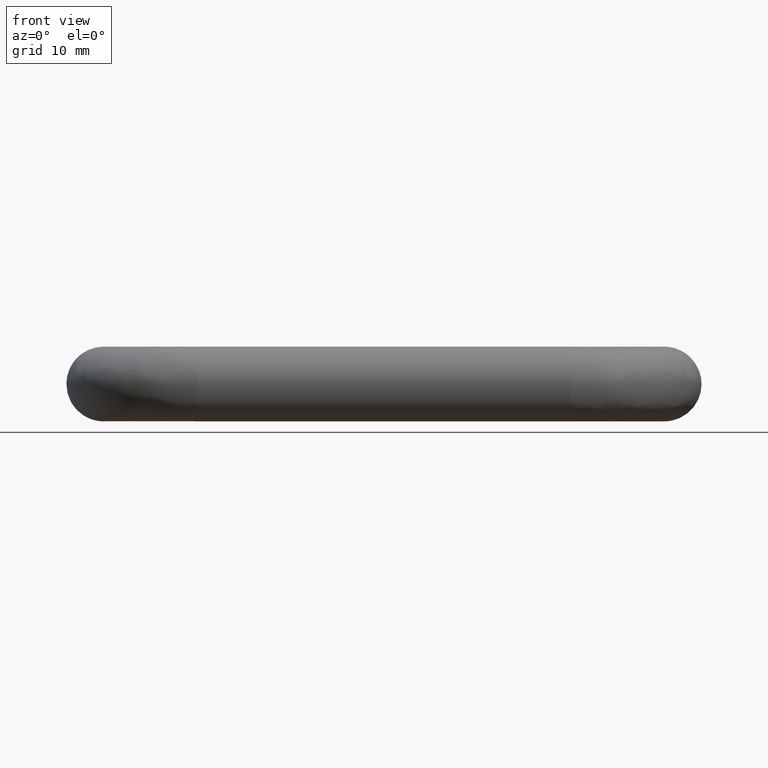
[diagram: clean part render]
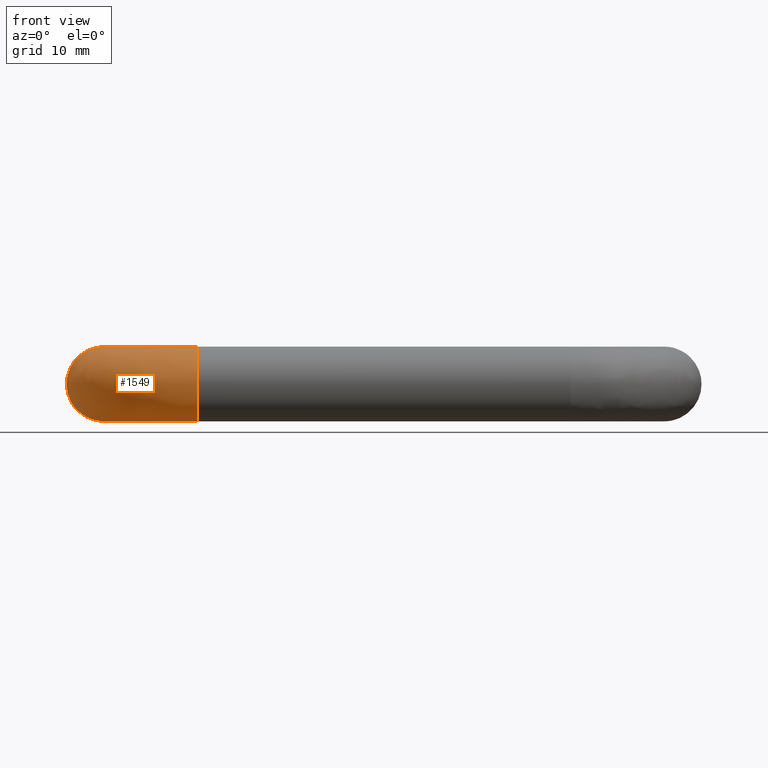
[diagram: same view with one face highlighted and labeled with its STEP entity id]
A machine part, front view. The second image highlights one B-rep face of the part: STEP entity #1549.
In plain terms, the highlighted face is a freeform B-spline surface patch.
Its self-contained STEP definition (entity closure, byte-faithful):
#981=CARTESIAN_POINT('',(9.999999999977183,-18.050264159744199,3.999684176812615));
#982=VERTEX_POINT('',#981);
#998=CARTESIAN_POINT('',(10.0,-22.0,0.0));
#999=VERTEX_POINT('',#998);
#1000=CARTESIAN_POINT('',(9.999999999977183,-18.050264159744192,3.999684176812615));
#1001=CARTESIAN_POINT('',(10.0,-22.0,3.950047719212881));
#1002=CARTESIAN_POINT('',(10.0,-22.0,0.0));
#1010=(BOUNDED_CURVE()B_SPLINE_CURVE(2,(#1000,#1001,#1002),.UNSPECIFIED.,.F.,.U.)B_SPLINE_CURVE_WITH_KNOTS((3,3),(0.752215704096809,1.0),.UNSPECIFIED.)CURVE()GEOMETRIC_REPRESENTATION_ITEM()RATIONAL_B_SPLINE_CURVE((0.994854295601348,0.709702640005957,1.0))REPRESENTATION_ITEM(''));
#1011=EDGE_CURVE('',#982,#999,#1010,.T.);
#1013=CARTESIAN_POINT('',(10.0,-20.901498075328391,-2.753417679696430));
#1014=VERTEX_POINT('',#1013);
#1015=CARTESIAN_POINT('',(10.0,-22.0,0.0));
#1016=CARTESIAN_POINT('',(10.000000000000002,-22.0,-1.595837188198000));
#1017=CARTESIAN_POINT('',(10.0,-20.901498075328391,-2.753417679696430));
#1025=(BOUNDED_CURVE()B_SPLINE_CURVE(2,(#1015,#1016,#1017),.UNSPECIFIED.,.F.,.U.)B_SPLINE_CURVE_WITH_KNOTS((3,3),(0.0,0.121049461843310),.UNSPECIFIED.)CURVE()GEOMETRIC_REPRESENTATION_ITEM()RATIONAL_B_SPLINE_CURVE((1.0,0.858181733940307,0.853699666169231))REPRESENTATION_ITEM(''));
#1026=EDGE_CURVE('',#999,#1014,#1025,.T.);
#1132=CARTESIAN_POINT('',(9.999999999754682,-17.721066993419509,-3.990262695342246));
#1133=VERTEX_POINT('',#1132);
#1134=CARTESIAN_POINT('',(10.0,-20.901498075328398,-2.753417679696430));
#1135=CARTESIAN_POINT('',(10.0,-19.718536641396604,-4.000000000000001));
#1136=CARTESIAN_POINT('',(10.0,-18.0,-4.0));
#1137=CARTESIAN_POINT('',(10.0,-17.860363536221410,-4.000000000000000));
#1138=CARTESIAN_POINT('',(9.999999999754682,-17.721066993419505,-3.990262695342246));
#1146=(BOUNDED_CURVE()B_SPLINE_CURVE(2,(#1134,#1135,#1136,#1137,#1138),.UNSPECIFIED.,.F.,.U.)B_SPLINE_CURVE_WITH_KNOTS((3,2,3),(0.121049461843310,0.250000000000000,0.262166313488892),.UNSPECIFIED.)CURVE()GEOMETRIC_REPRESENTATION_ITEM()RATIONAL_B_SPLINE_CURVE((0.853699666169232,0.848925047246240,1.0,0.985746277124580,0.972879876336249))REPRESENTATION_ITEM(''));
#1147=EDGE_CURVE('',#1014,#1133,#1146,.T.);
#1186=CARTESIAN_POINT('',(-0.050264161491411,-8.000000000482695,3.999684176790658));
#1187=VERTEX_POINT('',#1186);
#1242=CARTESIAN_POINT('',(-2.803636855499414,-7.999996549036103,-2.853001994825821));
#1243=VERTEX_POINT('',#1242);
#1249=CARTESIAN_POINT('',(-3.999999999999999,-8.0,0.0));
#1250=VERTEX_POINT('',#1249);
#1251=CARTESIAN_POINT('',(-3.999999999999999,-8.0,0.0));
#1252=CARTESIAN_POINT('',(-4.000000000000053,-7.999998600445676,-1.677339539548950));
#1253=CARTESIAN_POINT('',(-2.803636855499414,-7.999996549036104,-2.853001994825821));
#1261=(BOUNDED_CURVE()B_SPLINE_CURVE(2,(#1251,#1252,#1253),.UNSPECIFIED.,.F.,.U.)B_SPLINE_CURVE_WITH_KNOTS((3,3),(0.0,0.126316778926350),.UNSPECIFIED.)CURVE()GEOMETRIC_REPRESENTATION_ITEM()RATIONAL_B_SPLINE_CURVE((1.0,0.852010688120457,0.853569641778120))REPRESENTATION_ITEM(''));
#1262=EDGE_CURVE('',#1250,#1243,#1261,.T.);
#1264=CARTESIAN_POINT('',(-0.050264161491411,-8.000000000482695,3.999684176790658));
#1265=CARTESIAN_POINT('',(-4.0,-8.0,3.950047715761540));
#1266=CARTESIAN_POINT('',(-3.999999999999999,-8.0,0.0));
#1274=(BOUNDED_CURVE()B_SPLINE_CURVE(2,(#1264,#1265,#1266),.UNSPECIFIED.,.F.,.U.)B_SPLINE_CURVE_WITH_KNOTS((3,3),(0.752215704250460,1.0),.UNSPECIFIED.)CURVE()GEOMETRIC_REPRESENTATION_ITEM()RATIONAL_B_SPLINE_CURVE((0.994854295247703,0.709702640185971,1.0))REPRESENTATION_ITEM(''));
#1275=EDGE_CURVE('',#1187,#1250,#1274,.T.);
#1317=CARTESIAN_POINT('',(0.278927085149124,-7.999992841993045,-3.990263109262084));
#1318=VERTEX_POINT('',#1317);
#1332=CARTESIAN_POINT('',(-2.803636855499414,-7.999996549036104,-2.853001994825821));
#1333=CARTESIAN_POINT('',(-1.636442875590120,-7.999994547647625,-3.999999999996933));
#1334=CARTESIAN_POINT('',(-2.710222E-013,-7.999993083438938,-3.999999999996109));
#1335=CARTESIAN_POINT('',(0.139633492081325,-7.999992958501750,-3.999999999996039));
#1336=CARTESIAN_POINT('',(0.278927085149124,-7.999992841993045,-3.990263109262085));
#1344=(BOUNDED_CURVE()B_SPLINE_CURVE(2,(#1332,#1333,#1334,#1335,#1336),.UNSPECIFIED.,.F.,.U.)B_SPLINE_CURVE_WITH_KNOTS((3,2,3),(0.126316778926350,0.250000000000000,0.262166058259925),.UNSPECIFIED.)CURVE()GEOMETRIC_REPRESENTATION_ITEM()RATIONAL_B_SPLINE_CURVE((0.853569641778120,0.855096093066091,1.0,0.985746576143914,0.972880416168121))REPRESENTATION_ITEM(''));
#1345=EDGE_CURVE('',#1243,#1318,#1344,.T.);
#1480=CARTESIAN_POINT('',(0.362759058552336,-7.328220084217699,-3.986037690130090));
#1481=CARTESIAN_POINT('',(-0.409692905576315,-18.409685187760218,-3.986037690130087));
#1482=CARTESIAN_POINT('',(10.671772770664438,-17.637241439507328,-3.986037690130088));
#1483=CARTESIAN_POINT('',(0.332525016635582,-7.326112570017734,-3.988156279814388));
#1484=CARTESIAN_POINT('',(-0.442350290979450,-18.442342548950961,-3.988156279814386));
#1485=CARTESIAN_POINT('',(10.673880262448675,-17.667475482986603,-3.988156279814387));
#1486=CARTESIAN_POINT('',(0.188541437608098,-7.316075955059079,-3.998245639552520));
#1487=CARTESIAN_POINT('',(-0.597874558788898,-18.597866701453658,-3.998245639552521));
#1488=CARTESIAN_POINT('',(10.683916770656896,-17.811459069455264,-3.998245639552520));
#1489=CARTESIAN_POINT('',(0.074349399755585,-7.308116009049880,-3.999684176815263));
#1490=CARTESIAN_POINT('',(-0.721219409615885,-18.721211460831963,-3.999684176815263));
#1491=CARTESIAN_POINT('',(10.691876632003321,-17.925651113209302,-3.999684176815263));
#1492=CARTESIAN_POINT('',(-3.915652775873313,-7.029986268203891,-4.049948336348672));
#1493=CARTESIAN_POINT('',(-5.031031480646149,-23.031020336538660,-4.049948336348671));
#1494=CARTESIAN_POINT('',(10.970003414633782,-21.915653495044438,-4.049948336348672));
#1495=CARTESIAN_POINT('',(-3.965795261386791,-7.026491002816214,-0.050264159533408));
#1496=CARTESIAN_POINT('',(-5.085193027388509,-23.085181843125294,-0.050264159533408));
#1497=CARTESIAN_POINT('',(10.973498642845470,-21.965795983149324,-0.050264159533408));
#1498=CARTESIAN_POINT('',(-4.015937746900272,-7.022995737428533,3.949420017281855));
#1499=CARTESIAN_POINT('',(-5.139354574130874,-23.139343349711918,3.949420017281855));
#1500=CARTESIAN_POINT('',(10.976993871057159,-22.015938471254195,3.949420017281855));
#1501=CARTESIAN_POINT('',(0.003379571743219,-7.303168939097503,4.000053475116461));
#1502=CARTESIAN_POINT('',(-0.797877668930852,-18.797869663311985,4.000053475116459));
#1503=CARTESIAN_POINT('',(10.696823649338167,-17.996620944889447,4.000053475116459));
#1504=CARTESIAN_POINT('',(0.032516827215180,-7.305199999973329,4.000420532474561));
#1505=CARTESIAN_POINT('',(-0.766404980490537,-18.766396998205721,4.000420532474562));
#1506=CARTESIAN_POINT('',(10.694792610064908,-17.967483687911653,4.000420532474561));
#1514=(BOUNDED_SURFACE()B_SPLINE_SURFACE(2,2,((#1480,#1483,#1486,#1489,#1492,#1495,#1498,#1501,#1504),(#1481,#1484,#1487,#1490,#1493,#1496,#1499,#1502,#1505),(#1482,#1485,#1488,#1491,#1494,#1497,#1500,#1503,#1506)),.UNSPECIFIED.,.F.,.F.,.U.)B_SPLINE_SURFACE_WITH_KNOTS((3,3),(3,1,2,2,1,3),(0.0,25.512674355220089),(0.0,0.068988752659974,0.334085179762860,6.961502177732383,13.588919175701911,13.657991151437541),.UNSPECIFIED.)GEOMETRIC_REPRESENTATION_ITEM()RATIONAL_B_SPLINE_SURFACE(((0.896248106684243,0.898834768799030,0.911360947984552,0.922164769991582,0.652068962232381,0.922164769991582,0.652068962232381,0.924979750712662,0.927794731433741),(0.588139987186060,0.589837418301060,0.598057404274496,0.605147137228335,0.427903644349782,0.605147137228335,0.427903644349782,0.606994396612067,0.608841655995799),(0.896247803949265,0.898834465190328,0.911360640144753,0.922164458502465,0.652068741976314,0.922164458502465,0.652068741976314,0.924979438272700,0.927794418042934)))REPRESENTATION_ITEM('')SURFACE());
#1515=ORIENTED_EDGE('',*,*,#1147,.F.);
#1516=ORIENTED_EDGE('',*,*,#1026,.F.);
#1517=ORIENTED_EDGE('',*,*,#1011,.F.);
#1518=CARTESIAN_POINT('',(-0.050264161491411,-8.000000000482695,3.999684176790658));
#1519=CARTESIAN_POINT('',(-0.050264158568014,-18.050264159487760,3.999684176815263));
#1520=CARTESIAN_POINT('',(9.999999999977183,-18.050264159744199,3.999684176812615));
#1528=(BOUNDED_CURVE()B_SPLINE_CURVE(2,(#1518,#1519,#1520),.UNSPECIFIED.,.F.,.U.)B_SPLINE_CURVE_WITH_KNOTS((3,3),(-1.744561813214446,-0.255438186689191),.UNSPECIFIED.)CURVE()GEOMETRIC_REPRESENTATION_ITEM()RATIONAL_B_SPLINE_CURVE((0.894678510006817,0.632633241451508,0.894678510040732))REPRESENTATION_ITEM(''));
#1529=EDGE_CURVE('',#1187,#982,#1528,.T.);
#1530=ORIENTED_EDGE('',*,*,#1529,.F.);
#1531=ORIENTED_EDGE('',*,*,#1275,.T.);
#1532=ORIENTED_EDGE('',*,*,#1262,.T.);
#1533=ORIENTED_EDGE('',*,*,#1345,.T.);
#1534=CARTESIAN_POINT('',(0.278927085149124,-7.999992841993045,-3.990263109262084));
#1535=CARTESIAN_POINT('',(0.278922887841558,-17.721066993066049,-3.990262902302166));
#1536=CARTESIAN_POINT('',(9.999999999754682,-17.721066993419505,-3.990262695342245));
#1544=(BOUNDED_CURVE()B_SPLINE_CURVE(2,(#1534,#1535,#1536),.UNSPECIFIED.,.F.,.U.)B_SPLINE_CURVE_WITH_KNOTS((3,3),(-1.744562588658354,-0.255438186737555),.UNSPECIFIED.)CURVE()GEOMETRIC_REPRESENTATION_ITEM()RATIONAL_B_SPLINE_CURVE((0.874553700153646,0.618402529915441,0.874553433394918))REPRESENTATION_ITEM(''));
#1545=EDGE_CURVE('',#1318,#1133,#1544,.T.);
#1546=ORIENTED_EDGE('',*,*,#1545,.T.);
#1547=EDGE_LOOP('',(#1515,#1516,#1517,#1530,#1531,#1532,#1533,#1546));
#1548=FACE_OUTER_BOUND('',#1547,.T.);
#1549=ADVANCED_FACE('',(#1548),#1514,.T.);